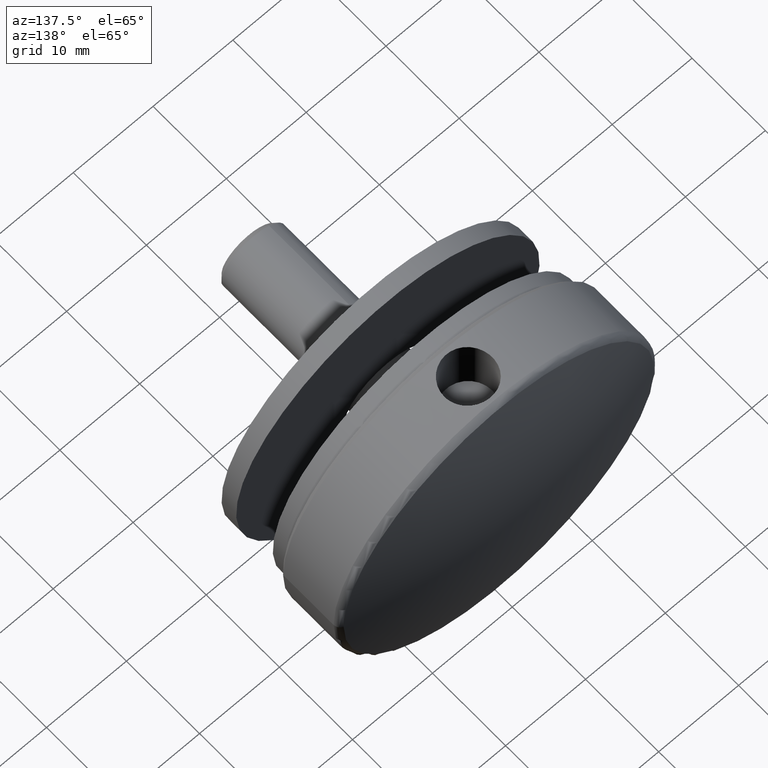
[diagram: clean part render]
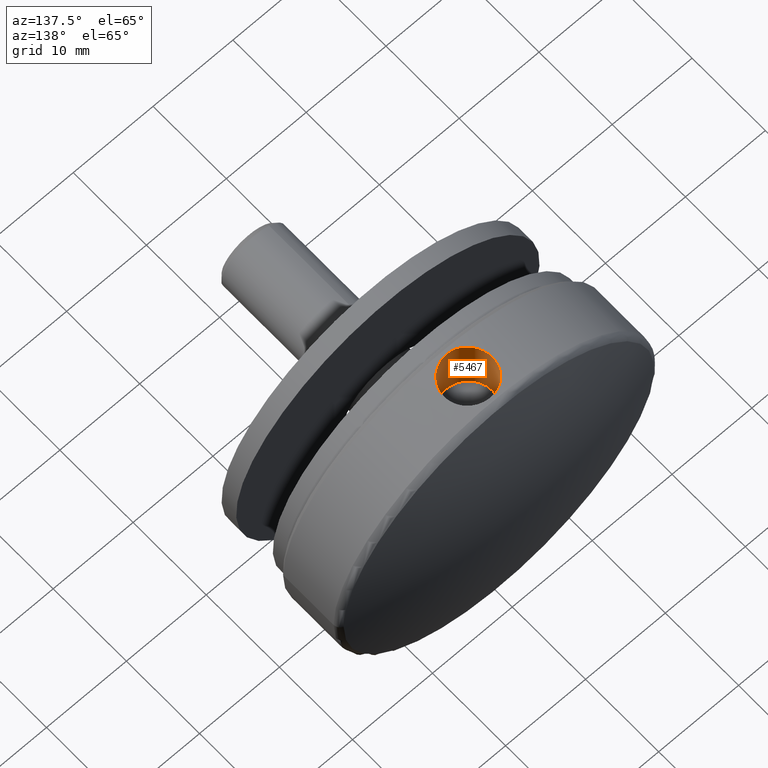
[diagram: same view with one face highlighted and labeled with its STEP entity id]
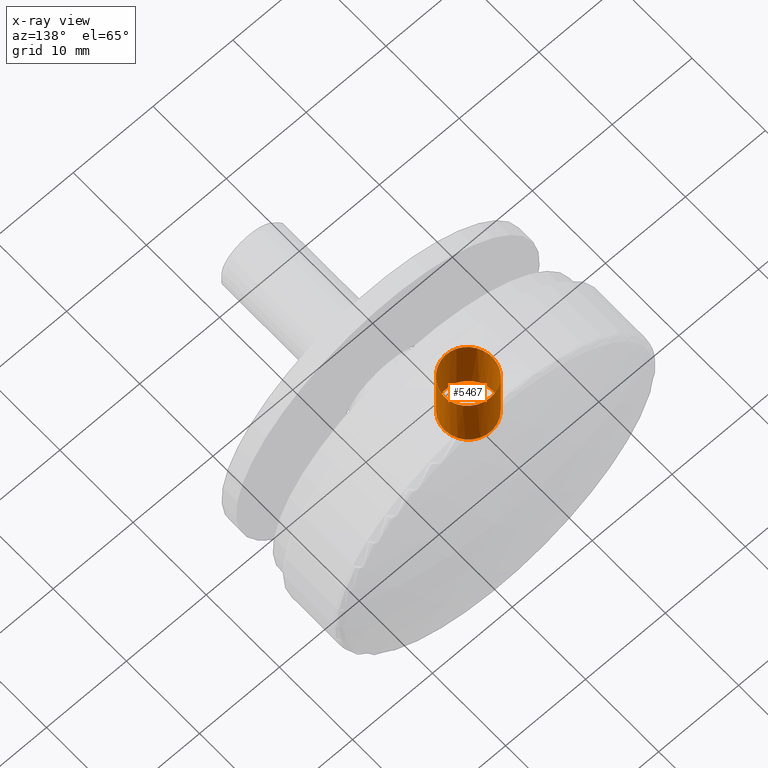
[diagram: x-ray of the same camera — body ghosted, the highlighted face saturated]
A machine part, auxiliary view. The second image highlights one B-rep face of the part: STEP entity #5467.
The next image is the same camera in x-ray: the body ghosted, the highlighted face saturated — about 0% of this face is hidden behind the body in this view.
In plain terms, the highlighted cylindrical surface (bore or boss wall) has radius 3 mm, axis along (0, 0, 1).
Its self-contained STEP definition (entity closure, byte-faithful):
#27 = CARTESIAN_POINT ( 'NONE',  ( 2.259260527010547470, 2.011589378261172456, 19.87246967985173995 ) ) ;
#113 = CARTESIAN_POINT ( 'NONE',  ( -2.980208671656109143, 3.598908363933509769, 19.77675080022012466 ) ) ;
#296 = CARTESIAN_POINT ( 'NONE',  ( 0.9657274049644248848, 6.842097939216760238, 19.97749811756152027 ) ) ;
#985 = CARTESIAN_POINT ( 'NONE',  ( 2.999999999999987566, 3.994999999999995222, 19.77371993328518585 ) ) ;
#1025 = CARTESIAN_POINT ( 'NONE',  ( 0.7798554023450405825, 1.091411069866732531, 19.98572920600360447 ) ) ;
#1068 = CARTESIAN_POINT ( 'NONE',  ( 0.3924843016013101482, 1.014235132259551975, 19.99708734834322144 ) ) ;
#1117 = CARTESIAN_POINT ( 'NONE',  ( 2.999999999999987566, 3.796505327831507959, 19.77371993328518229 ) ) ;
#1164 = CARTESIAN_POINT ( 'NONE',  ( -2.904244946109210357, 4.772452195124960106, 19.78804872610958299 ) ) ;
#1204 = CARTESIAN_POINT ( 'NONE',  ( -2.604078776341595347, 5.497513335365487919, 19.83005102670025011 ) ) ;
#1344 = CARTESIAN_POINT ( 'NONE',  ( -1.505751477479396305, 6.597118657433129307, 19.94390529219465336 ) ) ;
#1354 = VERTEX_POINT ( 'NONE', #5643 ) ;
#1383 = ORIENTED_EDGE ( 'NONE', *, *, #2838, .F. ) ;
#2093 = CARTESIAN_POINT ( 'NONE',  ( -3.000075187788553865, 4.189762673103095914, 19.77370852605633189 ) ) ;
#2139 = CARTESIAN_POINT ( 'NONE',  ( -0.9654443059216516465, 1.147787280579954272, 19.97751409969940539 ) ) ;
#2180 = CARTESIAN_POINT ( 'NONE',  ( -2.601643994846837504, 2.488485653911706397, 19.83036650118665634 ) ) ;
#2226 = CARTESIAN_POINT ( 'NONE',  ( -2.697296528857994424, 5.322699078997125355, 19.81742377391596577 ) ) ;
#2269 = CARTESIAN_POINT ( 'NONE',  ( 0.3908299546655025769, 6.975865032044842984, 19.99710334011701107 ) ) ;
#2315 = CARTESIAN_POINT ( 'NONE',  ( -2.385346488580513125, 5.824998558950380989, 19.85754949948118053 ) ) ;
#2358 = CARTESIAN_POINT ( 'NONE',  ( 2.999999999999987566, 3.994999999999995222, 19.77371993328518585 ) ) ;
#2625 = CYLINDRICAL_SURFACE ( 'NONE', #10619, 2.999999999999988898 ) ;
#2838 = EDGE_CURVE ( 'NONE', #7001, #7001, #12923, .T. ) ;
#3111 = CARTESIAN_POINT ( 'NONE',  ( -1.504275438480749294, 1.392061028481431206, 19.94401427874445432 ) ) ;
#3324 = CARTESIAN_POINT ( 'NONE',  ( 2.602028829569768220, 5.501130428467652322, 19.83032320855959796 ) ) ;
#3446 = FACE_OUTER_BOUND ( 'NONE', #10997, .T. ) ;
#3461 = CARTESIAN_POINT ( 'NONE',  ( 1.501080283454475639, 6.599844582463810561, 19.94426147716974640 ) ) ;
#3764 = DIRECTION ( 'NONE',  ( 1.000000000000000000, 0.000000000000000000, 0.000000000000000000 ) ) ;
#4109 = FACE_OUTER_BOUND ( 'NONE', #7882, .T. ) ;
#4220 = ORIENTED_EDGE ( 'NONE', *, *, #11596, .F. ) ;
#4298 = DIRECTION ( 'NONE',  ( 1.000000000000000000, 0.000000000000000000, 0.000000000000000000 ) ) ;
#4310 = CARTESIAN_POINT ( 'NONE',  ( 2.385781400097931382, 2.165670691361518685, 19.85749434712200312 ) ) ;
#4402 = CARTESIAN_POINT ( 'NONE',  ( 2.694944518628680008, 5.327454306437990894, 19.81774487506233484 ) ) ;
#4584 = CARTESIAN_POINT ( 'NONE',  ( 2.257915189029448211, 5.979935286169751230, 19.87262286955643020 ) ) ;
#4794 = DIRECTION ( 'NONE',  ( -0.000000000000000000, -0.000000000000000000, 1.000000000000000000 ) ) ;
#5240 = CARTESIAN_POINT ( 'NONE',  ( 2.980494632510935382, 3.601384464667872098, 19.77670706137168111 ) ) ;
#5289 = CARTESIAN_POINT ( 'NONE',  ( 1.504243725710038060, 1.391897211145205926, 19.94402935115139996 ) ) ;
#5370 = CARTESIAN_POINT ( 'NONE',  ( -2.384381064545721518, 2.163917290254680825, 19.85766134232187596 ) ) ;
#5420 = CARTESIAN_POINT ( 'NONE',  ( 0.9692005117596770303, 1.149159496943955805, 19.97731995618197587 ) ) ;
#5462 = CARTESIAN_POINT ( 'NONE',  ( -0.9703054951543788054, 6.840562345118187615, 19.97727773938222029 ) ) ;
#5467 = ADVANCED_FACE ( 'NONE', ( #3446, #4109 ), #2625, .F. ) ;
#5549 = CARTESIAN_POINT ( 'NONE',  ( -1.985183788243350067, 6.252716254382630900, 19.90171714750904997 ) ) ;
#5643 = CARTESIAN_POINT ( 'NONE',  ( 2.999999999999988454, 3.994999999999996998, 19.77371993328518229 ) ) ;
#6309 = CARTESIAN_POINT ( 'NONE',  ( -2.846314737807527973, 3.026961233156909792, 19.79657222170714093 ) ) ;
#6445 = CARTESIAN_POINT ( 'NONE',  ( -2.903185432767896312, 3.213945165983599139, 19.78820432185765199 ) ) ;
#6488 = CARTESIAN_POINT ( 'NONE',  ( -0.3933378054690898074, 1.014428953963818492, 19.99705895379198850 ) ) ;
#6536 = CARTESIAN_POINT ( 'NONE',  ( 1.827406881401280492, 6.382266513394359464, 19.91701262681982598 ) ) ;
#6583 = CARTESIAN_POINT ( 'NONE',  ( 2.844982231046248256, 4.966718345130437307, 19.79676271506473029 ) ) ;
#6630 = CARTESIAN_POINT ( 'NONE',  ( 2.980492046609052093, 4.389636676817129768, 19.77670861652950407 ) ) ;
#7001 = VERTEX_POINT ( 'NONE', #9759 ) ;
#7178 = AXIS2_PLACEMENT_3D ( 'NONE', #10620, #10669, #4298 ) ;
#7329 = CARTESIAN_POINT ( 'NONE',  ( 1.982912023966428183, 1.735301850126051981, 19.90194385507969344 ) ) ;
#7378 = CARTESIAN_POINT ( 'NONE',  ( -1.329000246935090113, 1.298249859347310409, 19.95662573320378286 ) ) ;
#7424 = CARTESIAN_POINT ( 'NONE',  ( 1.330056958386002686, 1.298871982216261767, 19.95654305612850621 ) ) ;
#7506 = CARTESIAN_POINT ( 'NONE',  ( -2.999924367750781418, 3.797927883773788427, 19.77373140794606243 ) ) ;
#7561 = CARTESIAN_POINT ( 'NONE',  ( 1.328779319930804448, 6.691839189702617041, 19.95663814315420836 ) ) ;
#7604 = CARTESIAN_POINT ( 'NONE',  ( -0.2008317574897388047, 6.994831115902126584, 19.99997466739415231 ) ) ;
#7882 = EDGE_LOOP ( 'NONE', ( #4220 ) ) ;
#8457 = CARTESIAN_POINT ( 'NONE',  ( 2.695634571067645702, 2.663759504817301504, 19.81765225613440862 ) ) ;
#8494 = CARTESIAN_POINT ( 'NONE',  ( -0.7783033420959301063, 1.091078117895944333, 19.98577807688070962 ) ) ;
#8536 = CARTESIAN_POINT ( 'NONE',  ( 2.603472936415865746, 2.491561515110397362, 19.83012766737487098 ) ) ;
#8576 = CARTESIAN_POINT ( 'NONE',  ( -2.846751857708068822, 4.961538809150909834, 19.79650720354969806 ) ) ;
#8619 = CARTESIAN_POINT ( 'NONE',  ( -2.261463040302941430, 5.975914504907145819, 19.87221892517047905 ) ) ;
#8709 = CARTESIAN_POINT ( 'NONE',  ( 1.981482987437620080, 6.255945435349328676, 19.90208647069351500 ) ) ;
#8797 = CARTESIAN_POINT ( 'NONE',  ( 0.7748024653411145213, 6.899821084409995642, 19.98590931602772969 ) ) ;
#9488 = CARTESIAN_POINT ( 'NONE',  ( -2.981144381110904185, 4.384677817788499965, 19.77660965061653187 ) ) ;
#9617 = CARTESIAN_POINT ( 'NONE',  ( 2.846307810905473357, 3.026920022762669582, 19.79657340378337693 ) ) ;
#9663 = CARTESIAN_POINT ( 'NONE',  ( 2.382192207591608657, 5.829160075772611194, 19.85793123343768585 ) ) ;
#9759 = CARTESIAN_POINT ( 'NONE',  ( 2.999999999999987121, 3.994999999999996998, 12.49999999999998757 ) ) ;
#9798 = CARTESIAN_POINT ( 'NONE',  ( -1.333671717301641468, 6.689445687771606863, 19.95631324620889657 ) ) ;
#9850 = CARTESIAN_POINT ( 'NONE',  ( 2.999999999999987566, 4.193494672168482040, 19.77371993328518940 ) ) ;
#10144 = CARTESIAN_POINT ( 'NONE',  ( -4.731064025391258908E-16, 3.994999999999996998, 19.99999999999999289 ) ) ;
#10502 = CARTESIAN_POINT ( 'NONE',  ( -1.980792087563050030, 1.733243495970535397, 19.90216665992417333 ) ) ;
#10619 = AXIS2_PLACEMENT_3D ( 'NONE', #10144, #4794, #3764 ) ;
#10620 = CARTESIAN_POINT ( 'NONE',  ( -4.731064025391258908E-16, 3.994999999999996998, 12.49999999999998757 ) ) ;
#10632 = CARTESIAN_POINT ( 'NONE',  ( 2.904122174186587024, 3.217596731754319705, 19.78806622293176076 ) ) ;
#10669 = DIRECTION ( 'NONE',  ( -0.000000000000000000, -0.000000000000000000, 1.000000000000000000 ) ) ;
#10683 = CARTESIAN_POINT ( 'NONE',  ( 1.832071248250929374, 1.611219754882194932, 19.91659034290908181 ) ) ;
#10728 = CARTESIAN_POINT ( 'NONE',  ( -0.3963926871789849038, 6.975121601832649176, 19.99699192943738524 ) ) ;
#10874 = CARTESIAN_POINT ( 'NONE',  ( -1.831084454568192577, 6.379415806760995622, 19.91667079449274524 ) ) ;
#10997 = EDGE_LOOP ( 'NONE', ( #1383 ) ) ;
#11577 = CARTESIAN_POINT ( 'NONE',  ( -2.260454243774321359, 2.012721919236700963, 19.87234565081214654 ) ) ;
#11596 = EDGE_CURVE ( 'NONE', #1354, #1354, #13036, .T. ) ;
#11672 = CARTESIAN_POINT ( 'NONE',  ( -1.829026254143617969, 1.609041315127196059, 19.91685751084322575 ) ) ;
#11815 = CARTESIAN_POINT ( 'NONE',  ( 2.902947195030746830, 4.777284174358786828, 19.78823979352068108 ) ) ;
#12642 = CARTESIAN_POINT ( 'NONE',  ( -0.1942566587511933562, 0.9948895982359851065, 20.00001656026199015 ) ) ;
#12773 = CARTESIAN_POINT ( 'NONE',  ( -2.695737535104842042, 2.663983177191850515, 19.81763806455638033 ) ) ;
#12819 = CARTESIAN_POINT ( 'NONE',  ( 0.1976517996777144015, 0.9951113623459328927, 19.99998329565072197 ) ) ;
#12863 = CARTESIAN_POINT ( 'NONE',  ( 0.1957541252189639036, 6.995166735568335348, 20.00002501032647118 ) ) ;
#12923 = CIRCLE ( 'NONE', #7178, 2.999999999999987566 ) ;
#12994 = CARTESIAN_POINT ( 'NONE',  ( -0.7799630153351138073, 6.898430663692166398, 19.98570666959620112 ) ) ;
#13036 = B_SPLINE_CURVE_WITH_KNOTS ( 'NONE', 3,
 ( #985, #1117, #5240, #10632, #9617, #8457, #8536, #4310, #27, #7329, #10683, #5289, #7424, #5420, #1025, #1068, #12819, #12642, #6488, #8494, #2139, #7378, #3111, #11672, #10502, #11577, #5370, #2180, #12773, #6309, #6445, #113, #7506, #2093, #9488, #1164, #8576, #2226, #1204, #2315, #8619, #5549, #10874, #1344, #9798, #5462, #12994, #10728, #7604, #12863, #2269, #8797, #296, #7561, #3461, #6536, #8709, #4584, #9663, #3324, #4402, #6583, #11815, #6630, #9850, #2358 ),
 .UNSPECIFIED., .T., .F.,
 ( 4, 2, 2, 2, 2, 2, 2, 2, 2, 2, 2, 2, 2, 2, 2, 2, 2, 2, 2, 2, 2, 2, 2, 2, 2, 2, 2, 2, 2, 2, 2, 2, 4 ),
 ( 0.000000000000000000, 0.0005869663246212992059, 0.001173932649242598412, 0.001760898973863897835, 0.002347865298485196824, 0.002934831623106494512, 0.003521797947727792200, 0.004108764272349090321, 0.004695730596970387576, 0.005282696921591685697, 0.005869663246212983819, 0.006456629570834281941, 0.007043595895455580930, 0.007630562220076878184, 0.008217528544698177173, 0.008804494869319475295, 0.009391461193940773416, 0.009978427518562071538, 0.01056539384318336619, 0.01115236016780466431, 0.01173932649242596243, 0.01232629281704726056, 0.01291325914166855521, 0.01350022546628985333, 0.01408719179091115145, 0.01467415811553244784, 0.01526112444015374423, 0.01584809076477504061, 0.01643505708939634047, 0.01702202341401763686, 0.01760898973863893324, 0.01819595606326022963, 0.01878292238788152602 ),
 .UNSPECIFIED. ) ;